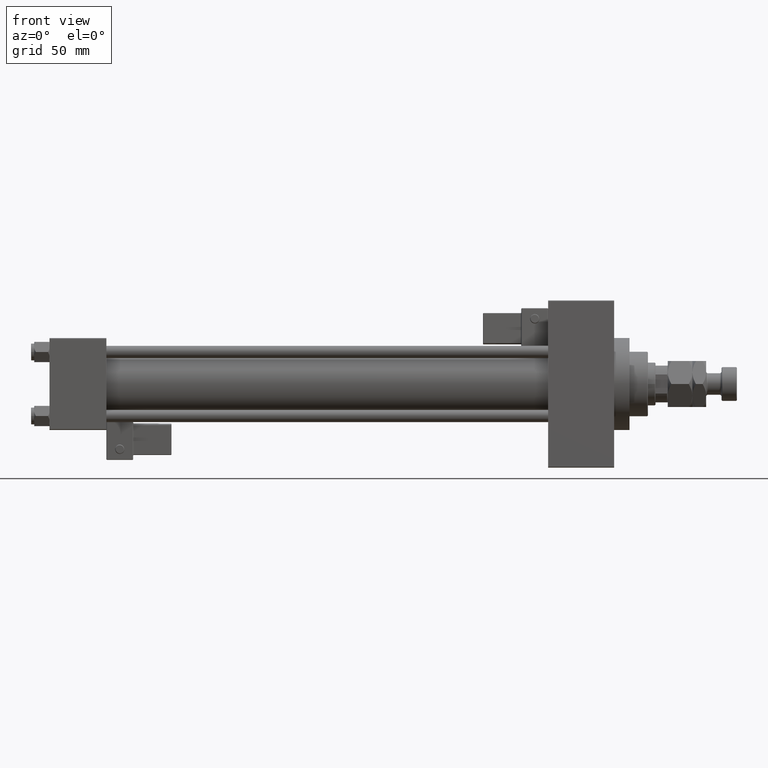
[diagram: clean part render]
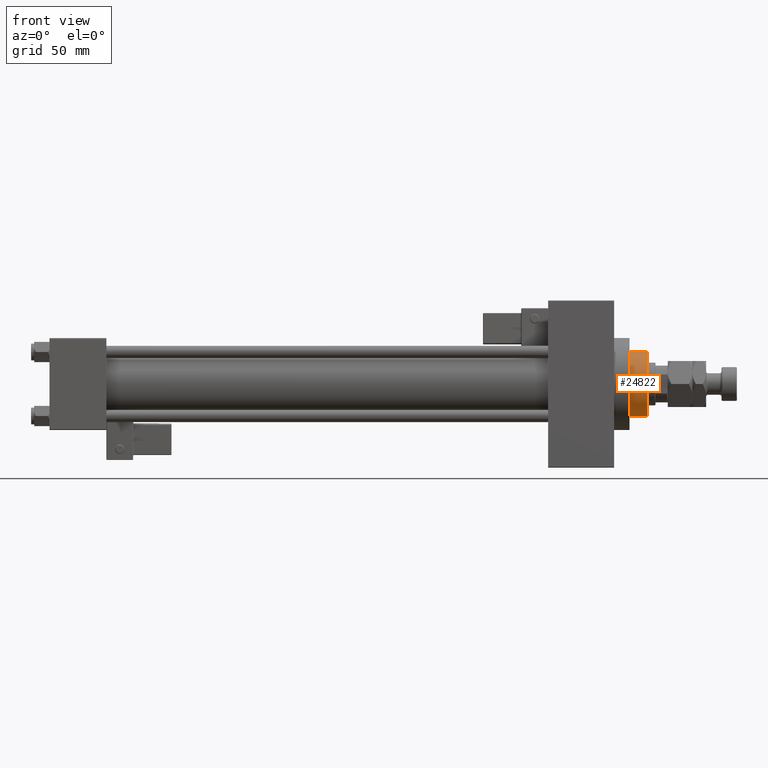
[diagram: same view with one face highlighted and labeled with its STEP entity id]
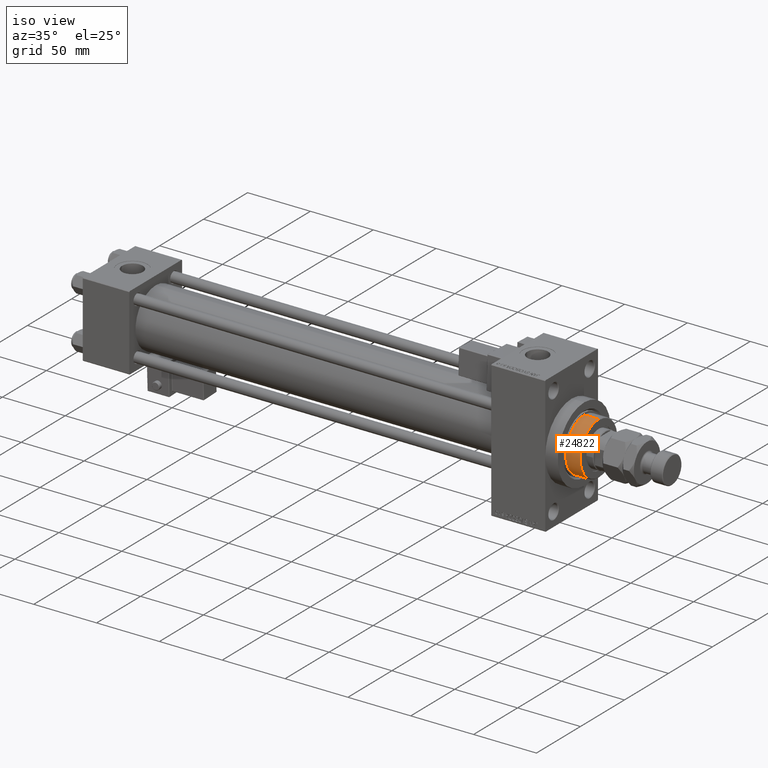
[diagram: same view with one face highlighted and labeled with its STEP entity id]
A machine part, front view. The second image highlights one B-rep face of the part: STEP entity #24822.
A second angle (iso view) of the same face is appended — the face is thin or edge-on in the first view.
In plain terms, the highlighted cylindrical surface (edge-blend (fillet) strip) has radius 21 mm, axis along (-1, 0, 0).
Its self-contained STEP definition (entity closure, byte-faithful):
#135 = CARTESIAN_POINT ( 'NONE',  ( 0.000000000000000000, 0.000000000000000000, 55.26000000000000512 ) ) ;
#1016 = CARTESIAN_POINT ( 'NONE',  ( -21.00000000000000000, 0.000000000000000000, 54.75999999999999091 ) ) ;
#1125 = DIRECTION ( 'NONE',  ( 0.000000000000000000, 0.000000000000000000, 1.000000000000000000 ) ) ;
#1763 = VECTOR ( 'NONE', #51056, 1000.000000000000000 ) ;
#2722 = AXIS2_PLACEMENT_3D ( 'NONE', #135, #51091, #35219 ) ;
#4434 = DIRECTION ( 'NONE',  ( 0.000000000000000000, 0.000000000000000000, -1.000000000000000000 ) ) ;
#5268 = LINE ( 'NONE', #21101, #24436 ) ;
#8913 = VERTEX_POINT ( 'NONE', #29841 ) ;
#10741 = AXIS2_PLACEMENT_3D ( 'NONE', #33322, #1125, #49200 ) ;
#11470 = CARTESIAN_POINT ( 'NONE',  ( -21.00000000000000000, 0.000000000000000000, 43.25999999999999801 ) ) ;
#12161 = EDGE_CURVE ( 'NONE', #44708, #32809, #20738, .T. ) ;
#13704 = EDGE_CURVE ( 'NONE', #35133, #8913, #5268, .T. ) ;
#14003 = EDGE_CURVE ( 'NONE', #23565, #35133, #45990, .T. ) ;
#14650 = AXIS2_PLACEMENT_3D ( 'NONE', #20118, #31818, #19605 ) ;
#14905 = CIRCLE ( 'NONE', #10741, 21.00000000000000000 ) ;
#16239 = CYLINDRICAL_SURFACE ( 'NONE', #2722, 21.00000000000000000 ) ;
#16693 = DIRECTION ( 'NONE',  ( -0.000000000000000000, -0.000000000000000000, -1.000000000000000000 ) ) ;
#17671 = ORIENTED_EDGE ( 'NONE', *, *, #36810, .T. ) ;
#18250 = AXIS2_PLACEMENT_3D ( 'NONE', #37995, #41646, #34607 ) ;
#19605 = DIRECTION ( 'NONE',  ( 1.000000000000000000, 0.000000000000000000, 0.000000000000000000 ) ) ;
#20118 = CARTESIAN_POINT ( 'NONE',  ( 0.000000000000000000, 0.000000000000000000, 43.25999999999999801 ) ) ;
#20738 = CIRCLE ( 'NONE', #18250, 21.00000000000000000 ) ;
#21101 = CARTESIAN_POINT ( 'NONE',  ( 21.00000000000000000, 2.571758278209441661E-15, 55.26000000000000512 ) ) ;
#21139 = ORIENTED_EDGE ( 'NONE', *, *, #14003, .T. ) ;
#22035 = EDGE_CURVE ( 'NONE', #23565, #32809, #26605, .T. ) ;
#23565 = VERTEX_POINT ( 'NONE', #1016 ) ;
#23593 = AXIS2_PLACEMENT_3D ( 'NONE', #44943, #4434, #40276 ) ;
#24436 = VECTOR ( 'NONE', #16693, 1000.000000000000000 ) ;
#24822 = ADVANCED_FACE ( 'NONE', ( #39632 ), #16239, .T. ) ;
#26230 = ORIENTED_EDGE ( 'NONE', *, *, #13704, .T. ) ;
#26605 = LINE ( 'NONE', #46116, #1763 ) ;
#27108 = CIRCLE ( 'NONE', #14650, 21.00000000000000000 ) ;
#29841 = CARTESIAN_POINT ( 'NONE',  ( 21.00000000000000000, 2.571758278209441661E-15, 43.25999999999999801 ) ) ;
#31681 = EDGE_LOOP ( 'NONE', ( #21139, #26230, #38328, #17671, #48661, #33573 ) ) ;
#31818 = DIRECTION ( 'NONE',  ( 0.000000000000000000, 0.000000000000000000, 1.000000000000000000 ) ) ;
#32809 = VERTEX_POINT ( 'NONE', #11470 ) ;
#33322 = CARTESIAN_POINT ( 'NONE',  ( 0.000000000000000000, 0.000000000000000000, 43.25999999999999801 ) ) ;
#33573 = ORIENTED_EDGE ( 'NONE', *, *, #22035, .F. ) ;
#34239 = CARTESIAN_POINT ( 'NONE',  ( -20.96385542168674831, 1.231570484631382412, 43.25999999999999801 ) ) ;
#34607 = DIRECTION ( 'NONE',  ( 1.000000000000000000, 0.000000000000000000, 0.000000000000000000 ) ) ;
#35133 = VERTEX_POINT ( 'NONE', #39927 ) ;
#35219 = DIRECTION ( 'NONE',  ( -1.000000000000000000, 0.000000000000000000, 0.000000000000000000 ) ) ;
#36810 = EDGE_CURVE ( 'NONE', #39760, #44708, #27108, .T. ) ;
#37995 = CARTESIAN_POINT ( 'NONE',  ( 0.000000000000000000, 0.000000000000000000, 43.25999999999999801 ) ) ;
#38328 = ORIENTED_EDGE ( 'NONE', *, *, #50164, .T. ) ;
#39632 = FACE_OUTER_BOUND ( 'NONE', #31681, .T. ) ;
#39760 = VERTEX_POINT ( 'NONE', #48262 ) ;
#39927 = CARTESIAN_POINT ( 'NONE',  ( 21.00000000000000000, 2.571758278209441661E-15, 54.75999999999999091 ) ) ;
#40276 = DIRECTION ( 'NONE',  ( 1.000000000000000000, 0.000000000000000000, 0.000000000000000000 ) ) ;
#41646 = DIRECTION ( 'NONE',  ( 0.000000000000000000, 0.000000000000000000, 1.000000000000000000 ) ) ;
#44708 = VERTEX_POINT ( 'NONE', #34239 ) ;
#44943 = CARTESIAN_POINT ( 'NONE',  ( 0.000000000000000000, 0.000000000000000000, 54.75999999999999091 ) ) ;
#45990 = CIRCLE ( 'NONE', #23593, 21.00000000000000000 ) ;
#46116 = CARTESIAN_POINT ( 'NONE',  ( -21.00000000000000000, 0.000000000000000000, 55.26000000000000512 ) ) ;
#48262 = CARTESIAN_POINT ( 'NONE',  ( 20.96385542168674831, 1.231570484631385076, 43.25999999999999801 ) ) ;
#48661 = ORIENTED_EDGE ( 'NONE', *, *, #12161, .T. ) ;
#49200 = DIRECTION ( 'NONE',  ( 1.000000000000000000, 0.000000000000000000, 0.000000000000000000 ) ) ;
#50164 = EDGE_CURVE ( 'NONE', #8913, #39760, #14905, .T. ) ;
#51056 = DIRECTION ( 'NONE',  ( -0.000000000000000000, -0.000000000000000000, -1.000000000000000000 ) ) ;
#51091 = DIRECTION ( 'NONE',  ( -0.000000000000000000, -0.000000000000000000, -1.000000000000000000 ) ) ;